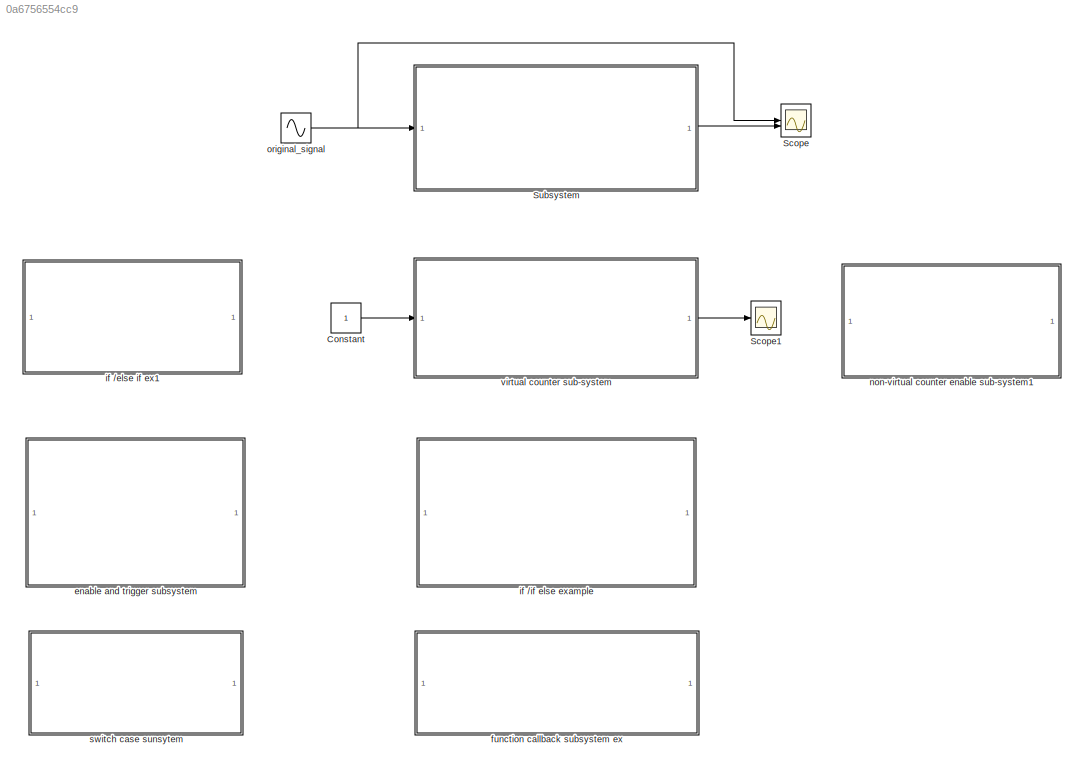
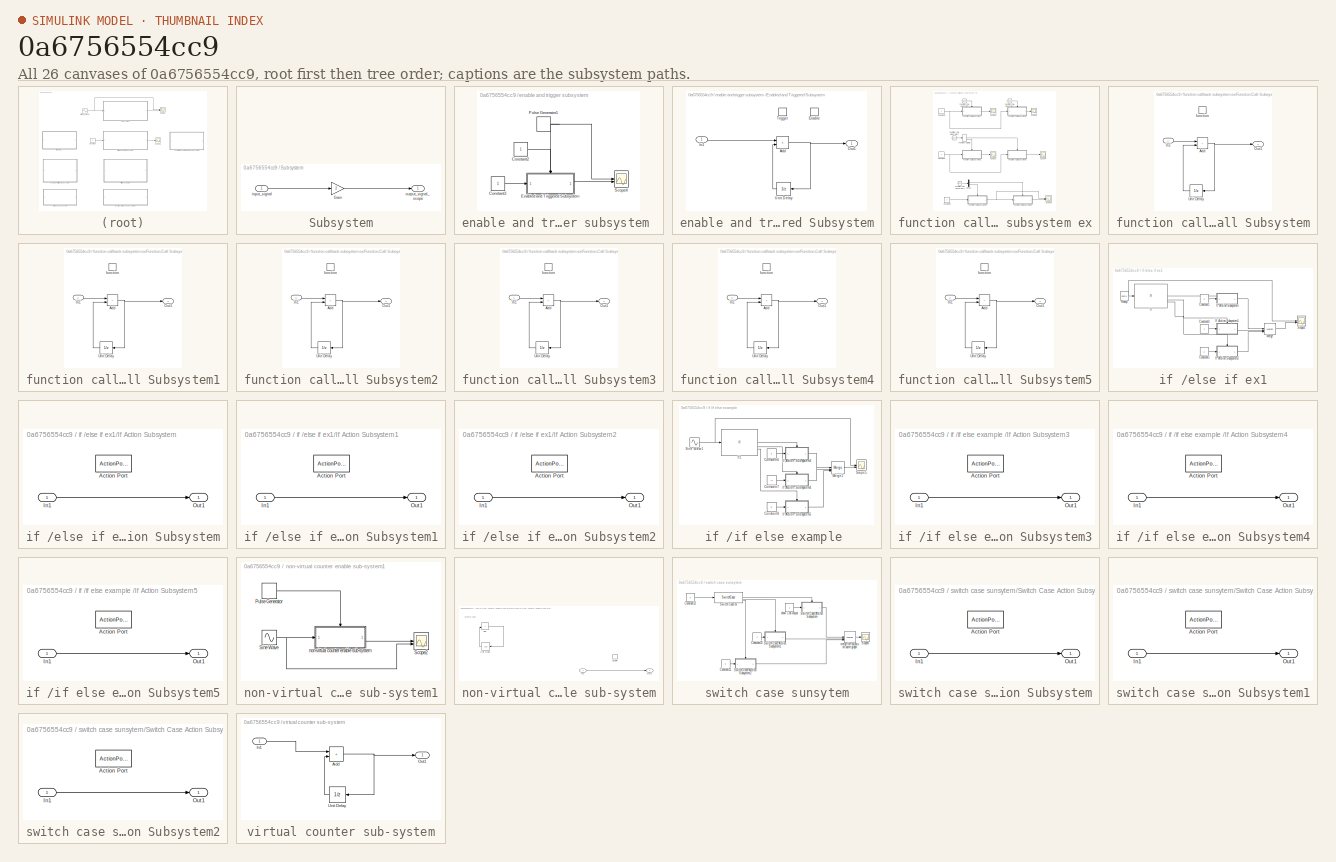
[diagram: thumbnail index - all 26 canvases of the model, root first then tree order]
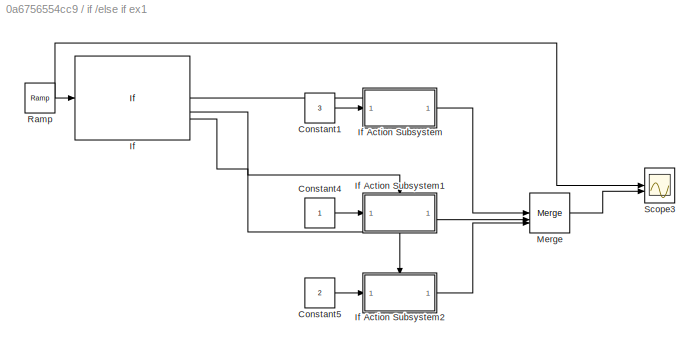
MODEL slx_0a6756554cc9
KIND model
CONFIG AbsTol = auto
CONFIG EnableMultiTasking = off
CONFIG FixedStep = 1e-3
CONFIG MaxStep = auto
CONFIG MinStep = auto
CONFIG RelTol = 1e-3
CONFIG SampleTimeConstraint = Unconstrained
CONFIG SolverName = FixedStepAuto
CONFIG StartTime = 0.0
CONFIG StopTime = 10.0
BLOCK [Constant] Constant
BLOCK [Scope] Scope
  Floating = off
  NumInputPorts = 2
  ScopeSpecificationString = Simulink.scopes.TimeScopeBlockCfg('CurrentConfiguration', extmgr.ConfigurationSet(extmgr.Configuration('Core','General UI',true),extmgr.Configuration('Core','Source UI',true),extmgr.Configuration('Sources','WiredSimulink',true),extmgr.Configuration('Visuals','Time Domain',true,'SerializedDisplays',{struct('MinYLimReal','-2.49126','MaxYLimReal','2.49808','YLabelReal','','MinYLimMag','0.00000','MaxY...<+1345ch>
BLOCK [Scope] Scope1
  Floating = off
  NumInputPorts = 1
  ScopeSpecificationString = Simulink.scopes.TimeScopeBlockCfg('CurrentConfiguration', extmgr.ConfigurationSet(extmgr.Configuration('Core','General UI',true),extmgr.Configuration('Core','Source UI',true),extmgr.Configuration('Sources','WiredSimulink',true,'DataLoggingVariableName','ScopeData1'),extmgr.Configuration('Visuals','Time Domain',true,'SerializedDisplays',{struct('MinYLimReal','-5.25','MaxYLimReal','57.25','YLabelRea...<+1369ch>
BLOCK [SubSystem] Subsystem
BLOCK [Gain] Subsystem/Gain
  Gain = 2
BLOCK [Inport] Subsystem/input_signal
BLOCK [Outport] Subsystem/output_signal_scope
BLOCK [SubSystem] enable and trigger subsystem 
BLOCK [Constant] enable and trigger subsystem /Constant2
BLOCK [Constant] enable and trigger subsystem /Constant3
BLOCK [SubSystem] enable and trigger subsystem /Enabled and Triggered Subsystem
  TreatAsAtomicUnit = on
BLOCK [Sum] enable and trigger subsystem /Enabled and Triggered Subsystem/Add
  IconShape = rectangular
BLOCK [EnablePort] enable and trigger subsystem /Enabled and Triggered Subsystem/Enable
BLOCK [Inport] enable and trigger subsystem /Enabled and Triggered Subsystem/In1
BLOCK [Outport] enable and trigger subsystem /Enabled and Triggered Subsystem/Out1
BLOCK [TriggerPort] enable and trigger subsystem /Enabled and Triggered Subsystem/Trigger
  StatesWhenEnabling = held
  TriggerType = either
  VariantControl = (inherit)
BLOCK [UnitDelay] enable and trigger subsystem /Enabled and Triggered Subsystem/Unit Delay
  HasFrameUpgradeWarning = on
  NameLocation = top
  SampleTime = -1
BLOCK [DiscretePulseGenerator] enable and trigger subsystem /Pulse Generator1
  PulseType = Time based
  PulseWidth = 50
BLOCK [Scope] enable and trigger subsystem /Scope4
  Floating = off
  NumInputPorts = 2
  ScopeSpecificationString = Simulink.scopes.TimeScopeBlockCfg('CurrentConfiguration', extmgr.ConfigurationSet(extmgr.Configuration('Core','General UI',true),extmgr.Configuration('Core','Source UI',true),extmgr.Configuration('Sources','WiredSimulink',true,'DataLoggingVariableName','ScopeData2'),extmgr.Configuration('Visuals','Time Domain',true,'SerializedDisplays',{struct('MinYLimReal','-0.125','MaxYLimReal','1.125','YLabelRe...<+2755ch>
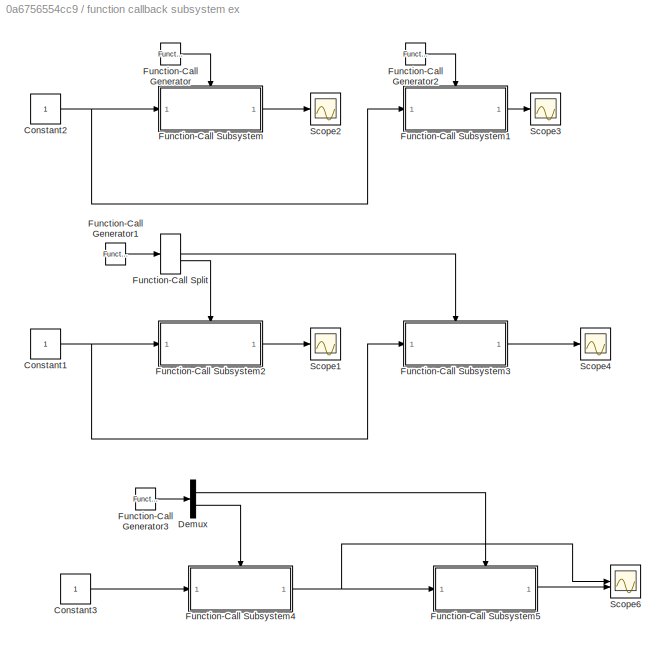
BLOCK [SubSystem] function callback subsystem ex
BLOCK [Constant] function callback subsystem ex/Constant1
BLOCK [Constant] function callback subsystem ex/Constant2
BLOCK [Constant] function callback subsystem ex/Constant3
BLOCK [Demux] function callback subsystem ex/Demux
  Outputs = 2
BLOCK [Reference] function callback subsystem ex/Function-Call Generator  REF=simulink/Ports &
Subsystems/Function-Call
Generator
  SourceBlock = simulink/Ports &\nSubsystems/Function-Call\nGenerator
  SourceType = Function-Call Generator
BLOCK [Reference] function callback subsystem ex/Function-Call Generator1  REF=simulink/Ports &
Subsystems/Function-Call
Generator
  SourceBlock = simulink/Ports &\nSubsystems/Function-Call\nGenerator
  SourceType = Function-Call Generator
BLOCK [Reference] function callback subsystem ex/Function-Call Generator2  REF=simulink/Ports &
Subsystems/Function-Call
Generator
  SourceBlock = simulink/Ports &\nSubsystems/Function-Call\nGenerator
  SourceType = Function-Call Generator
BLOCK [Reference] function callback subsystem ex/Function-Call Generator3  REF=simulink/Ports &
Subsystems/Function-Call
Generator
  SourceBlock = simulink/Ports &\nSubsystems/Function-Call\nGenerator
  SourceType = Function-Call Generator
BLOCK [FunctionCallSplit] function callback subsystem ex/Function-Call Split
  IconShape = distinctive
  NumOutputPorts = 2
  OutputPortLayout = default
BLOCK [SubSystem] function callback subsystem ex/Function-Call Subsystem
  TreatAsAtomicUnit = on
BLOCK [Sum] function callback subsystem ex/Function-Call Subsystem/Add
  IconShape = rectangular
BLOCK [Inport] function callback subsystem ex/Function-Call Subsystem/In1
BLOCK [Outport] function callback subsystem ex/Function-Call Subsystem/Out1
BLOCK [UnitDelay] function callback subsystem ex/Function-Call Subsystem/Unit Delay
  HasFrameUpgradeWarning = on
  NameLocation = top
  SampleTime = -1
BLOCK [TriggerPort] function callback subsystem ex/Function-Call Subsystem/function
  StatesWhenEnabling = held
  TriggerType = function-call
  VariantControl = (inherit)
BLOCK [SubSystem] function callback subsystem ex/Function-Call Subsystem1
  TreatAsAtomicUnit = on
BLOCK [Sum] function callback subsystem ex/Function-Call Subsystem1/Add
  IconShape = rectangular
BLOCK [Inport] function callback subsystem ex/Function-Call Subsystem1/In1
BLOCK [Outport] function callback subsystem ex/Function-Call Subsystem1/Out1
BLOCK [UnitDelay] function callback subsystem ex/Function-Call Subsystem1/Unit Delay
  HasFrameUpgradeWarning = on
  NameLocation = top
  SampleTime = -1
BLOCK [TriggerPort] function callback subsystem ex/Function-Call Subsystem1/function
  StatesWhenEnabling = held
  TriggerType = function-call
  VariantControl = (inherit)
BLOCK [SubSystem] function callback subsystem ex/Function-Call Subsystem2
  TreatAsAtomicUnit = on
BLOCK [Sum] function callback subsystem ex/Function-Call Subsystem2/Add
  IconShape = rectangular
BLOCK [Inport] function callback subsystem ex/Function-Call Subsystem2/In1
BLOCK [Outport] function callback subsystem ex/Function-Call Subsystem2/Out1
BLOCK [UnitDelay] function callback subsystem ex/Function-Call Subsystem2/Unit Delay
  HasFrameUpgradeWarning = on
  NameLocation = top
  SampleTime = -1
BLOCK [TriggerPort] function callback subsystem ex/Function-Call Subsystem2/function
  StatesWhenEnabling = held
  TriggerType = function-call
  VariantControl = (inherit)
BLOCK [SubSystem] function callback subsystem ex/Function-Call Subsystem3
  TreatAsAtomicUnit = on
BLOCK [Sum] function callback subsystem ex/Function-Call Subsystem3/Add
  IconShape = rectangular
BLOCK [Inport] function callback subsystem ex/Function-Call Subsystem3/In1
BLOCK [Outport] function callback subsystem ex/Function-Call Subsystem3/Out1
BLOCK [UnitDelay] function callback subsystem ex/Function-Call Subsystem3/Unit Delay
  HasFrameUpgradeWarning = on
  NameLocation = top
  SampleTime = -1
BLOCK [TriggerPort] function callback subsystem ex/Function-Call Subsystem3/function
  StatesWhenEnabling = held
  TriggerType = function-call
  VariantControl = (inherit)
BLOCK [SubSystem] function callback subsystem ex/Function-Call Subsystem4
  TreatAsAtomicUnit = on
BLOCK [Sum] function callback subsystem ex/Function-Call Subsystem4/Add
  IconShape = rectangular
BLOCK [Inport] function callback subsystem ex/Function-Call Subsystem4/In1
BLOCK [Outport] function callback subsystem ex/Function-Call Subsystem4/Out1
BLOCK [UnitDelay] function callback subsystem ex/Function-Call Subsystem4/Unit Delay
  HasFrameUpgradeWarning = on
  NameLocation = top
  SampleTime = -1
BLOCK [TriggerPort] function callback subsystem ex/Function-Call Subsystem4/function
  StatesWhenEnabling = held
  TriggerType = function-call
  VariantControl = (inherit)
BLOCK [SubSystem] function callback subsystem ex/Function-Call Subsystem5
  TreatAsAtomicUnit = on
BLOCK [Sum] function callback subsystem ex/Function-Call Subsystem5/Add
  IconShape = rectangular
BLOCK [Inport] function callback subsystem ex/Function-Call Subsystem5/In1
BLOCK [Outport] function callback subsystem ex/Function-Call Subsystem5/Out1
BLOCK [UnitDelay] function callback subsystem ex/Function-Call Subsystem5/Unit Delay
  HasFrameUpgradeWarning = on
  NameLocation = top
  SampleTime = -1
BLOCK [TriggerPort] function callback subsystem ex/Function-Call Subsystem5/function
  StatesWhenEnabling = held
  TriggerType = function-call
  VariantControl = (inherit)
BLOCK [Scope] function callback subsystem ex/Scope1
  Floating = off
  NumInputPorts = 1
  ScopeSpecificationString = Simulink.scopes.TimeScopeBlockCfg('CurrentConfiguration', extmgr.ConfigurationSet(extmgr.Configuration('Core','General UI',true),extmgr.Configuration('Core','Source UI',true),extmgr.Configuration('Sources','WiredSimulink',true,'DataLoggingVariableName','ScopeData4'),extmgr.Configuration('Visuals','Time Domain',true,'SerializedDisplays',{struct('MinYLimReal','-4.00000','MaxYLimReal','46.00000','YLa...<+1418ch>
BLOCK [Scope] function callback subsystem ex/Scope2
  Floating = off
  NumInputPorts = 1
  ScopeSpecificationString = Simulink.scopes.TimeScopeBlockCfg('CurrentConfiguration', extmgr.ConfigurationSet(extmgr.Configuration('Core','General UI',true),extmgr.Configuration('Core','Source UI',true),extmgr.Configuration('Sources','WiredSimulink',true,'DataLoggingVariableName','ScopeData2'),extmgr.Configuration('Visuals','Time Domain',true,'SerializedDisplays',{struct('MinYLimReal','-4.00000','MaxYLimReal','46.00000','YLa...<+1418ch>
BLOCK [Scope] function callback subsystem ex/Scope3
  Floating = off
  NumInputPorts = 1
  ScopeSpecificationString = Simulink.scopes.TimeScopeBlockCfg('CurrentConfiguration', extmgr.ConfigurationSet(extmgr.Configuration('Core','General UI',true),extmgr.Configuration('Core','Source UI',true),extmgr.Configuration('Sources','WiredSimulink',true,'DataLoggingVariableName','ScopeData3'),extmgr.Configuration('Visuals','Time Domain',true,'SerializedDisplays',{struct('MinYLimReal','-4.00000','MaxYLimReal','46.00000','YLa...<+1524ch>
BLOCK [Scope] function callback subsystem ex/Scope4
  Floating = off
  NumInputPorts = 1
  ScopeSpecificationString = Simulink.scopes.TimeScopeBlockCfg('CurrentConfiguration', extmgr.ConfigurationSet(extmgr.Configuration('Core','General UI',true),extmgr.Configuration('Core','Source UI',true),extmgr.Configuration('Sources','WiredSimulink',true,'DataLoggingVariableName','ScopeData5'),extmgr.Configuration('Visuals','Time Domain',true,'SerializedDisplays',{struct('MinYLimReal','-4.00000','MaxYLimReal','46.00000','YLa...<+1524ch>
BLOCK [Scope] function callback subsystem ex/Scope6
  Floating = off
  NumInputPorts = 2
  ScopeSpecificationString = Simulink.scopes.TimeScopeBlockCfg('CurrentConfiguration', extmgr.ConfigurationSet(extmgr.Configuration('Core','General UI',true),extmgr.Configuration('Core','Source UI',true),extmgr.Configuration('Sources','WiredSimulink',true,'DataLoggingVariableName','ScopeData7'),extmgr.Configuration('Visuals','Time Domain',true,'SerializedDisplays',{struct('MinYLimReal','-0.25','MaxYLimReal','12.25','YLabelRea...<+1532ch>
BLOCK [SubSystem] if //else if ex1
BLOCK [Constant] if //else if ex1/Constant1
  Value = 3
BLOCK [Constant] if //else if ex1/Constant4
BLOCK [Constant] if //else if ex1/Constant5
  Value = 2
BLOCK [If] if //else if ex1/If
  ElseIfExpressions = u1>-0.5
  IfExpression = u1 > 1
BLOCK [SubSystem] if //else if ex1/If Action Subsystem
  TreatAsAtomicUnit = on
BLOCK [ActionPort] if //else if ex1/If Action Subsystem/Action Port
  ActionPortLabel = if(u1 > 1)
BLOCK [Inport] if //else if ex1/If Action Subsystem/In1
BLOCK [Outport] if //else if ex1/If Action Subsystem/Out1
BLOCK [SubSystem] if //else if ex1/If Action Subsystem1
  TreatAsAtomicUnit = on
BLOCK [ActionPort] if //else if ex1/If Action Subsystem1/Action Port
  ActionPortLabel = elseif(u1>-0.5)
BLOCK [Inport] if //else if ex1/If Action Subsystem1/In1
BLOCK [Outport] if //else if ex1/If Action Subsystem1/Out1
BLOCK [SubSystem] if //else if ex1/If Action Subsystem2
  TreatAsAtomicUnit = on
BLOCK [ActionPort] if //else if ex1/If Action Subsystem2/Action Port
  ActionPortLabel = else
BLOCK [Inport] if //else if ex1/If Action Subsystem2/In1
BLOCK [Outport] if //else if ex1/If Action Subsystem2/Out1
BLOCK [Merge] if //else if ex1/Merge
  Inputs = 3
BLOCK [Reference] if //else if ex1/Ramp  REF=simulink/Sources/Ramp
  SourceBlock = simulink/Sources/Ramp
  SourceType = Ramp
BLOCK [Scope] if //else if ex1/Scope3
  Floating = off
  NumInputPorts = 2
  ScopeSpecificationString = Simulink.scopes.TimeScopeBlockCfg('CurrentConfiguration', extmgr.ConfigurationSet(extmgr.Configuration('Core','General UI',true),extmgr.Configuration('Core','Source UI',true),extmgr.Configuration('Sources','WiredSimulink',true,'DataLoggingVariableName','ScopeData1'),extmgr.Configuration('Visuals','Time Domain',true,'SerializedDisplays',{struct('MinYLimReal','-1.75','MaxYLimReal','10.75','YLabelRea...<+2040ch>
BLOCK [SubSystem] if //if else example 
BLOCK [Constant] if //if else example /Constant6
  Value = 3
BLOCK [Constant] if //if else example /Constant7
  Value = -3
BLOCK [Constant] if //if else example /Constant8
  Value = 0
BLOCK [SubSystem] if //if else example /If Action Subsystem3
  TreatAsAtomicUnit = on
BLOCK [ActionPort] if //if else example /If Action Subsystem3/Action Port
  ActionPortLabel = if(u1 > 1 )
BLOCK [Inport] if //if else example /If Action Subsystem3/In1
BLOCK [Outport] if //if else example /If Action Subsystem3/Out1
BLOCK [SubSystem] if //if else example /If Action Subsystem4
  TreatAsAtomicUnit = on
BLOCK [ActionPort] if //if else example /If Action Subsystem4/Action Port
  ActionPortLabel = elseif(u1<-1)
BLOCK [Inport] if //if else example /If Action Subsystem4/In1
BLOCK [Outport] if //if else example /If Action Subsystem4/Out1
BLOCK [SubSystem] if //if else example /If Action Subsystem5
  TreatAsAtomicUnit = on
BLOCK [ActionPort] if //if else example /If Action Subsystem5/Action Port
  ActionPortLabel = else
BLOCK [Inport] if //if else example /If Action Subsystem5/In1
BLOCK [Outport] if //if else example /If Action Subsystem5/Out1
BLOCK [If] if //if else example /If1
  ElseIfExpressions = u1<-1
  IfExpression = u1 > 1
BLOCK [Merge] if //if else example /Merge1
  Inputs = 3
BLOCK [Scope] if //if else example /Scope5
  Floating = off
  NumInputPorts = 2
  ScopeSpecificationString = Simulink.scopes.TimeScopeBlockCfg('CurrentConfiguration', extmgr.ConfigurationSet(extmgr.Configuration('Core','General UI',true),extmgr.Configuration('Core','Source UI',true),extmgr.Configuration('Sources','WiredSimulink',true,'DataLoggingVariableName','ScopeData2'),extmgr.Configuration('Visuals','Time Domain',true,'SerializedDisplays',{struct('MinYLimReal','-8.57086','MaxYLimReal','8.71061','YLab...<+1376ch>
BLOCK [Sin] if //if else example /Sine Wave1
  Amplitude = 7
  SampleTime = 0
BLOCK [SubSystem] non-virtual counter enable sub-system1
BLOCK [DiscretePulseGenerator] non-virtual counter enable sub-system1/Pulse Generator
  Period = 1
  PulseType = Time based
  PulseWidth = 50
BLOCK [Scope] non-virtual counter enable sub-system1/Scope2
  Floating = off
  NumInputPorts = 2
  ScopeSpecificationString = Simulink.scopes.TimeScopeBlockCfg('CurrentConfiguration', extmgr.ConfigurationSet(extmgr.Configuration('Core','General UI',true),extmgr.Configuration('Core','Source UI',true),extmgr.Configuration('Sources','WiredSimulink',true,'DataLoggingVariableName','ScopeData2'),extmgr.Configuration('Visuals','Time Domain',true,'SerializedDisplays',{struct('MinYLimReal','-1.22441','MaxYLimReal','1.24437','YLab...<+2039ch>
BLOCK [Sin] non-virtual counter enable sub-system1/Sine Wave
  SampleTime = 0
BLOCK [SubSystem] non-virtual counter enable sub-system1/non-virtual counter enable sub-system
  TreatAsAtomicUnit = on
BLOCK [Sum] non-virtual counter enable sub-system1/non-virtual counter enable sub-system/Add
  Commented = on
  IconShape = rectangular
BLOCK [EnablePort] non-virtual counter enable sub-system1/non-virtual counter enable sub-system/Enable
BLOCK [Inport] non-virtual counter enable sub-system1/non-virtual counter enable sub-system/In1
BLOCK [Outport] non-virtual counter enable sub-system1/non-virtual counter enable sub-system/Out1
BLOCK [UnitDelay] non-virtual counter enable sub-system1/non-virtual counter enable sub-system/Unit Delay
  Commented = on
  HasFrameUpgradeWarning = on
  NameLocation = top
  SampleTime = -1
BLOCK [Sin] original_signal
  SampleTime = 0
BLOCK [SubSystem] switch case sunsytem
BLOCK [Constant] switch case sunsytem/Constant10
  Value = 2
BLOCK [Constant] switch case sunsytem/Constant11
  Value = 0
BLOCK [Constant] switch case sunsytem/Constant12
  Value = 4
BLOCK [Scope] switch case sunsytem/Scope6
  Floating = off
  NumInputPorts = 1
  ScopeSpecificationString = Simulink.scopes.TimeScopeBlockCfg('CurrentConfiguration', extmgr.ConfigurationSet(extmgr.Configuration('Core','General UI',true),extmgr.Configuration('Core','Source UI',true),extmgr.Configuration('Sources','WiredSimulink',true,'DataLoggingVariableName','ScopeData1'),extmgr.Configuration('Visuals','Time Domain',true,'SerializedDisplays',{struct('MinYLimReal','-1.00000','MaxYLimReal','1.00000','YLab...<+1420ch>
BLOCK [SubSystem] switch case sunsytem/Switch Case Action Subsystem
  TreatAsAtomicUnit = on
BLOCK [ActionPort] switch case sunsytem/Switch Case Action Subsystem/Action Port
  ActionPortLabel = case [ 1 ]:
BLOCK [Inport] switch case sunsytem/Switch Case Action Subsystem/In1
BLOCK [Outport] switch case sunsytem/Switch Case Action Subsystem/Out1
BLOCK [SubSystem] switch case sunsytem/Switch Case Action Subsystem1
  TreatAsAtomicUnit = on
BLOCK [ActionPort] switch case sunsytem/Switch Case Action Subsystem1/Action Port
  ActionPortLabel = case [ 2 3 5 ]:
BLOCK [Inport] switch case sunsytem/Switch Case Action Subsystem1/In1
BLOCK [Outport] switch case sunsytem/Switch Case Action Subsystem1/Out1
BLOCK [SubSystem] switch case sunsytem/Switch Case Action Subsystem2
  TreatAsAtomicUnit = on
BLOCK [ActionPort] switch case sunsytem/Switch Case Action Subsystem2/Action Port
  ActionPortLabel = default:
BLOCK [Inport] switch case sunsytem/Switch Case Action Subsystem2/In1
BLOCK [Outport] switch case sunsytem/Switch Case Action Subsystem2/Out1
BLOCK [SwitchCase] switch case sunsytem/Switch Case ex
  CaseConditions = {1,[2,3,5]}
BLOCK [Merge] switch case sunsytem/merge the outputs on same graph 
  Inputs = 3
BLOCK [Constant] switch case sunsytem/show 1 as output 
BLOCK [SubSystem] virtual counter sub-system
BLOCK [Sum] virtual counter sub-system/Add
  IconShape = rectangular
BLOCK [Inport] virtual counter sub-system/In1
BLOCK [Outport] virtual counter sub-system/Out1
BLOCK [UnitDelay] virtual counter sub-system/Unit Delay
  HasFrameUpgradeWarning = on
  NameLocation = top
  SampleTime = -1
ANNOTATION non-virtual counter enable sub-system1/non-virtual counter enable sub-system: counter loop
LINE Constant:1 -> virtual counter sub-system:1
LINE Subsystem/Gain:1 -> Subsystem/output_signal_scope:1
LINE Subsystem/input_signal:1 -> Subsystem/Gain:1
LINE Subsystem:1 -> Scope:2
LINE enable and trigger subsystem /Constant2:1 -> enable and trigger subsystem /Enabled and Triggered Subsystem:enable
LINE enable and trigger subsystem /Constant3:1 -> enable and trigger subsystem /Enabled and Triggered Subsystem:1
NET enable and trigger subsystem /Enabled and Triggered Subsystem/Add:1 -> enable and trigger subsystem /Enabled and Triggered Subsystem/Out1:1, enable and trigger subsystem /Enabled and Triggered Subsystem/Unit Delay:1
LINE enable and trigger subsystem /Enabled and Triggered Subsystem/In1:1 -> enable and trigger subsystem /Enabled and Triggered Subsystem/Add:1
LINE enable and trigger subsystem /Enabled and Triggered Subsystem/Unit Delay:1 -> enable and trigger subsystem /Enabled and Triggered Subsystem/Add:2
LINE enable and trigger subsystem /Enabled and Triggered Subsystem:1 -> enable and trigger subsystem /Scope4:2
NET enable and trigger subsystem /Pulse Generator1:1 -> enable and trigger subsystem /Enabled and Triggered Subsystem:trigger, enable and trigger subsystem /Scope4:1
NET function callback subsystem ex/Constant1:1 -> function callback subsystem ex/Function-Call Subsystem2:1, function callback subsystem ex/Function-Call Subsystem3:1
NET function callback subsystem ex/Constant2:1 -> function callback subsystem ex/Function-Call Subsystem1:1, function callback subsystem ex/Function-Call Subsystem:1
LINE function callback subsystem ex/Constant3:1 -> function callback subsystem ex/Function-Call Subsystem4:1
LINE function callback subsystem ex/Demux:1 -> function callback subsystem ex/Function-Call Subsystem5:trigger
LINE function callback subsystem ex/Demux:2 -> function callback subsystem ex/Function-Call Subsystem4:trigger
LINE function callback subsystem ex/Function-Call Generator1:1 -> function callback subsystem ex/Function-Call Split:1
LINE function callback subsystem ex/Function-Call Generator2:1 -> function callback subsystem ex/Function-Call Subsystem1:trigger
LINE function callback subsystem ex/Function-Call Generator3:1 -> function callback subsystem ex/Demux:1
LINE function callback subsystem ex/Function-Call Generator:1 -> function callback subsystem ex/Function-Call Subsystem:trigger
LINE function callback subsystem ex/Function-Call Split:1 -> function callback subsystem ex/Function-Call Subsystem3:trigger
LINE function callback subsystem ex/Function-Call Split:2 -> function callback subsystem ex/Function-Call Subsystem2:trigger
NET function callback subsystem ex/Function-Call Subsystem/Add:1 -> function callback subsystem ex/Function-Call Subsystem/Out1:1, function callback subsystem ex/Function-Call Subsystem/Unit Delay:1
LINE function callback subsystem ex/Function-Call Subsystem/In1:1 -> function callback subsystem ex/Function-Call Subsystem/Add:1
LINE function callback subsystem ex/Function-Call Subsystem/Unit Delay:1 -> function callback subsystem ex/Function-Call Subsystem/Add:2
NET function callback subsystem ex/Function-Call Subsystem1/Add:1 -> function callback subsystem ex/Function-Call Subsystem1/Out1:1, function callback subsystem ex/Function-Call Subsystem1/Unit Delay:1
LINE function callback subsystem ex/Function-Call Subsystem1/In1:1 -> function callback subsystem ex/Function-Call Subsystem1/Add:1
LINE function callback subsystem ex/Function-Call Subsystem1/Unit Delay:1 -> function callback subsystem ex/Function-Call Subsystem1/Add:2
LINE function callback subsystem ex/Function-Call Subsystem1:1 -> function callback subsystem ex/Scope3:1
NET function callback subsystem ex/Function-Call Subsystem2/Add:1 -> function callback subsystem ex/Function-Call Subsystem2/Out1:1, function callback subsystem ex/Function-Call Subsystem2/Unit Delay:1
LINE function callback subsystem ex/Function-Call Subsystem2/In1:1 -> function callback subsystem ex/Function-Call Subsystem2/Add:1
LINE function callback subsystem ex/Function-Call Subsystem2/Unit Delay:1 -> function callback subsystem ex/Function-Call Subsystem2/Add:2
LINE function callback subsystem ex/Function-Call Subsystem2:1 -> function callback subsystem ex/Scope1:1
NET function callback subsystem ex/Function-Call Subsystem3/Add:1 -> function callback subsystem ex/Function-Call Subsystem3/Out1:1, function callback subsystem ex/Function-Call Subsystem3/Unit Delay:1
LINE function callback subsystem ex/Function-Call Subsystem3/In1:1 -> function callback subsystem ex/Function-Call Subsystem3/Add:1
LINE function callback subsystem ex/Function-Call Subsystem3/Unit Delay:1 -> function callback subsystem ex/Function-Call Subsystem3/Add:2
LINE function callback subsystem ex/Function-Call Subsystem3:1 -> function callback subsystem ex/Scope4:1
NET function callback subsystem ex/Function-Call Subsystem4/Add:1 -> function callback subsystem ex/Function-Call Subsystem4/Out1:1, function callback subsystem ex/Function-Call Subsystem4/Unit Delay:1
LINE function callback subsystem ex/Function-Call Subsystem4/In1:1 -> function callback subsystem ex/Function-Call Subsystem4/Add:1
LINE function callback subsystem ex/Function-Call Subsystem4/Unit Delay:1 -> function callback subsystem ex/Function-Call Subsystem4/Add:2
NET function callback subsystem ex/Function-Call Subsystem4:1 -> function callback subsystem ex/Function-Call Subsystem5:1, function callback subsystem ex/Scope6:1
NET function callback subsystem ex/Function-Call Subsystem5/Add:1 -> function callback subsystem ex/Function-Call Subsystem5/Out1:1, function callback subsystem ex/Function-Call Subsystem5/Unit Delay:1
LINE function callback subsystem ex/Function-Call Subsystem5/In1:1 -> function callback subsystem ex/Function-Call Subsystem5/Add:1
LINE function callback subsystem ex/Function-Call Subsystem5/Unit Delay:1 -> function callback subsystem ex/Function-Call Subsystem5/Add:2
LINE function callback subsystem ex/Function-Call Subsystem5:1 -> function callback subsystem ex/Scope6:2
LINE function callback subsystem ex/Function-Call Subsystem:1 -> function callback subsystem ex/Scope2:1
LINE if //else if ex1/Constant1:1 -> if //else if ex1/If Action Subsystem:1
LINE if //else if ex1/Constant4:1 -> if //else if ex1/If Action Subsystem1:1
LINE if //else if ex1/Constant5:1 -> if //else if ex1/If Action Subsystem2:1
LINE if //else if ex1/If Action Subsystem/In1:1 -> if //else if ex1/If Action Subsystem/Out1:1
LINE if //else if ex1/If Action Subsystem1/In1:1 -> if //else if ex1/If Action Subsystem1/Out1:1
LINE if //else if ex1/If Action Subsystem1:1 -> if //else if ex1/Merge:2
LINE if //else if ex1/If Action Subsystem2/In1:1 -> if //else if ex1/If Action Subsystem2/Out1:1
LINE if //else if ex1/If Action Subsystem2:1 -> if //else if ex1/Merge:3
LINE if //else if ex1/If Action Subsystem:1 -> if //else if ex1/Merge:1
LINE if //else if ex1/If:1 -> if //else if ex1/If Action Subsystem:ifaction
LINE if //else if ex1/If:2 -> if //else if ex1/If Action Subsystem1:ifaction
LINE if //else if ex1/If:3 -> if //else if ex1/If Action Subsystem2:ifaction
LINE if //else if ex1/Merge:1 -> if //else if ex1/Scope3:2
NET if //else if ex1/Ramp:1 -> if //else if ex1/If:1, if //else if ex1/Scope3:1
LINE if //if else example /Constant6:1 -> if //if else example /If Action Subsystem3:1
LINE if //if else example /Constant7:1 -> if //if else example /If Action Subsystem4:1
LINE if //if else example /Constant8:1 -> if //if else example /If Action Subsystem5:1
LINE if //if else example /If Action Subsystem3/In1:1 -> if //if else example /If Action Subsystem3/Out1:1
LINE if //if else example /If Action Subsystem3:1 -> if //if else example /Merge1:1
LINE if //if else example /If Action Subsystem4/In1:1 -> if //if else example /If Action Subsystem4/Out1:1
LINE if //if else example /If Action Subsystem4:1 -> if //if else example /Merge1:2
LINE if //if else example /If Action Subsystem5/In1:1 -> if //if else example /If Action Subsystem5/Out1:1
LINE if //if else example /If Action Subsystem5:1 -> if //if else example /Merge1:3
LINE if //if else example /If1:1 -> if //if else example /If Action Subsystem3:ifaction
LINE if //if else example /If1:2 -> if //if else example /If Action Subsystem4:ifaction
LINE if //if else example /If1:3 -> if //if else example /If Action Subsystem5:ifaction
LINE if //if else example /Merge1:1 -> if //if else example /Scope5:2
NET if //if else example /Sine Wave1:1 -> if //if else example /If1:1, if //if else example /Scope5:1
LINE non-virtual counter enable sub-system1/Pulse Generator:1 -> non-virtual counter enable sub-system1/non-virtual counter enable sub-system:enable
NET non-virtual counter enable sub-system1/Sine Wave:1 -> non-virtual counter enable sub-system1/Scope2:2, non-virtual counter enable sub-system1/non-virtual counter enable sub-system:1
LINE non-virtual counter enable sub-system1/non-virtual counter enable sub-system/Add:1 -> non-virtual counter enable sub-system1/non-virtual counter enable sub-system/Unit Delay:1
LINE non-virtual counter enable sub-system1/non-virtual counter enable sub-system/In1:1 -> non-virtual counter enable sub-system1/non-virtual counter enable sub-system/Out1:1
LINE non-virtual counter enable sub-system1/non-virtual counter enable sub-system/Unit Delay:1 -> non-virtual counter enable sub-system1/non-virtual counter enable sub-system/Add:2
LINE non-virtual counter enable sub-system1/non-virtual counter enable sub-system:1 -> non-virtual counter enable sub-system1/Scope2:1
NET original_signal:1 -> Scope:1, Subsystem:1
LINE switch case sunsytem/Constant10:1 -> switch case sunsytem/Switch Case Action Subsystem1:1
LINE switch case sunsytem/Constant11:1 -> switch case sunsytem/Switch Case Action Subsystem2:1
LINE switch case sunsytem/Constant12:1 -> switch case sunsytem/Switch Case ex:1
LINE switch case sunsytem/Switch Case Action Subsystem/In1:1 -> switch case sunsytem/Switch Case Action Subsystem/Out1:1
LINE switch case sunsytem/Switch Case Action Subsystem1/In1:1 -> switch case sunsytem/Switch Case Action Subsystem1/Out1:1
LINE switch case sunsytem/Switch Case Action Subsystem1:1 -> switch case sunsytem/merge the outputs on same graph :2
LINE switch case sunsytem/Switch Case Action Subsystem2/In1:1 -> switch case sunsytem/Switch Case Action Subsystem2/Out1:1
LINE switch case sunsytem/Switch Case Action Subsystem2:1 -> switch case sunsytem/merge the outputs on same graph :3
LINE switch case sunsytem/Switch Case Action Subsystem:1 -> switch case sunsytem/merge the outputs on same graph :1
LINE switch case sunsytem/Switch Case ex:1 -> switch case sunsytem/Switch Case Action Subsystem:ifaction
LINE switch case sunsytem/Switch Case ex:2 -> switch case sunsytem/Switch Case Action Subsystem1:ifaction
LINE switch case sunsytem/Switch Case ex:3 -> switch case sunsytem/Switch Case Action Subsystem2:ifaction
LINE switch case sunsytem/merge the outputs on same graph :1 -> switch case sunsytem/Scope6:1
LINE switch case sunsytem/show 1 as output :1 -> switch case sunsytem/Switch Case Action Subsystem:1
NET virtual counter sub-system/Add:1 -> virtual counter sub-system/Out1:1, virtual counter sub-system/Unit Delay:1
LINE virtual counter sub-system/In1:1 -> virtual counter sub-system/Add:1
LINE virtual counter sub-system/Unit Delay:1 -> virtual counter sub-system/Add:2
LINE virtual counter sub-system:1 -> Scope1:1
note: NET lines group one-source signal fan-out (src -> all destinations, sorted); 1:1 wires keep LINE
